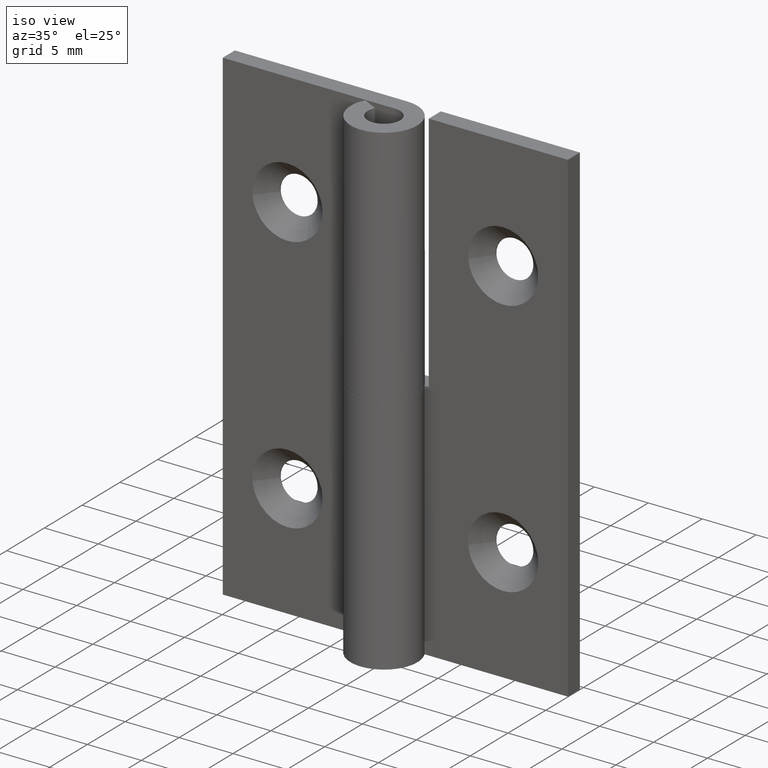
[diagram: clean part render]
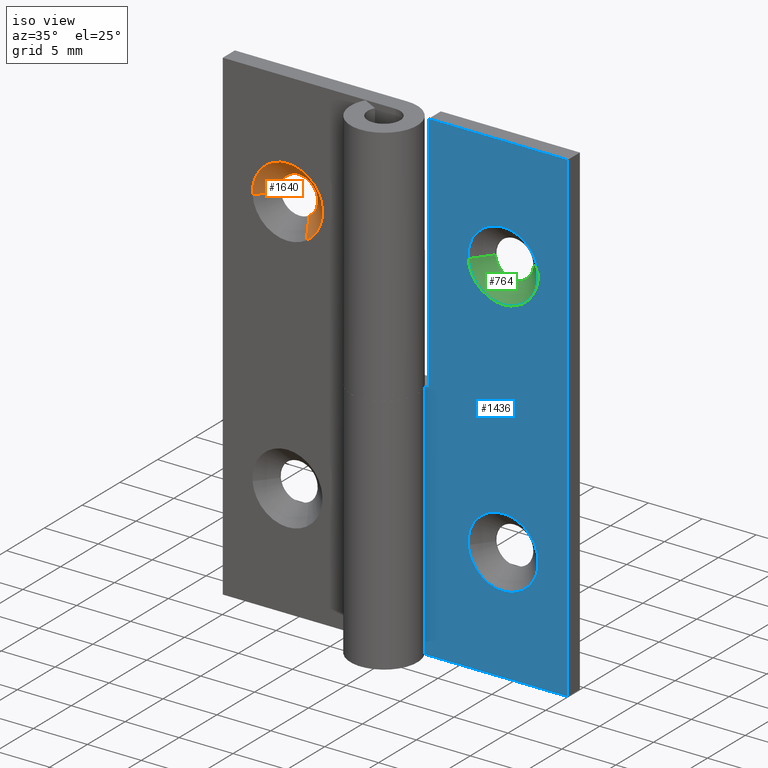
[diagram: same view with three faces highlighted in distinct colors, each labeled with its STEP entity id]
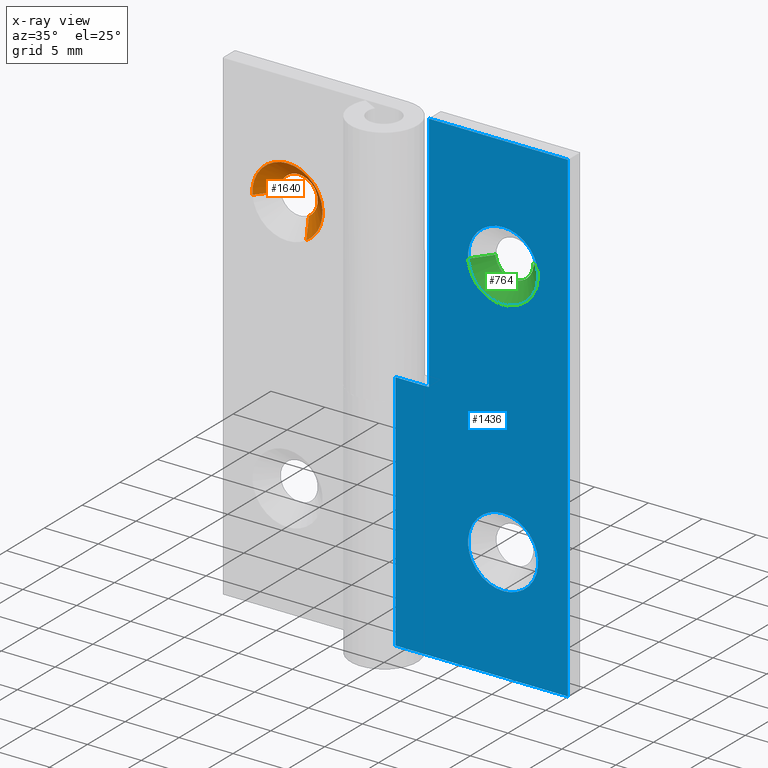
[diagram: x-ray of the same camera — body ghosted, the three highlighted faces saturated]
A machine part, iso view with three faces highlighted in distinct colors.
The next image is the same camera in x-ray (body ghosted, the three faces saturated) — at least one of them is partly hidden behind the body in this view.
Their STEP definitions:

[orange] entity #1640 — the highlighted face is a freeform B-spline surface patch.
#1504=CARTESIAN_POINT('',(-9.078930516223377,3.037499999999999,33.056293916319710));
#1505=CARTESIAN_POINT('',(-8.212106467955564,3.037500000000000,33.609318654310641));
#1506=CARTESIAN_POINT('',(-8.292779065982019,3.037500000000001,34.634361201433933));
#1507=CARTESIAN_POINT('',(-8.427140267415954,3.037500000000001,36.341582135451908));
#1508=CARTESIAN_POINT('',(-10.134361201433940,3.037500000000001,36.207220934017982));
#1509=CARTESIAN_POINT('',(-11.841582135451914,3.037500000000001,36.072859732584043));
#1510=CARTESIAN_POINT('',(-11.707220934017981,3.037500000000001,34.365638798566067));
#1511=CARTESIAN_POINT('',(-8.231311281426748,1.461562499999999,31.727715489312466));
#1512=CARTESIAN_POINT('',(-6.566787657353352,1.461562499999999,32.789664269947252));
#1513=CARTESIAN_POINT('',(-6.721699655351968,1.461562500000000,34.758007832607539));
#1514=CARTESIAN_POINT('',(-6.979707487959504,1.461562499999999,38.036308177255577));
#1515=CARTESIAN_POINT('',(-10.258007832607539,1.461562500000000,37.778300344648031));
#1516=CARTESIAN_POINT('',(-13.536308177255568,1.461562499999999,37.520292512040498));
#1517=CARTESIAN_POINT('',(-13.278300344648031,1.461562500000000,34.241992167392461));
#1525=(BOUNDED_SURFACE()B_SPLINE_SURFACE(2,1,((#1504,#1511),(#1505,#1512),(#1506,#1513),(#1507,#1514),(#1508,#1515),(#1509,#1516),(#1510,#1517)),.UNSPECIFIED.,.F.,.F.,.U.)B_SPLINE_SURFACE_WITH_KNOTS((3,2,2,3),(2,2),(0.0,3.704953919324270,9.153415565389375,14.601877211454481),(0.0,2.228712185952351),.UNSPECIFIED.)GEOMETRIC_REPRESENTATION_ITEM()RATIONAL_B_SPLINE_SURFACE(((0.872532871172386,0.872532871172386),(0.800832611206852,0.800832611206852),(1.0,1.0),(0.707106781186548,0.707106781186548),(1.0,1.0),(0.707106781186548,0.707106781186548),(1.0,1.0)))REPRESENTATION_ITEM('')SURFACE());
#1526=CARTESIAN_POINT('',(-8.262233269194535,3.000000000000070,34.706559408658691));
#1527=VERTEX_POINT('',#1526);
#1528=CARTESIAN_POINT('',(-9.058761111460914,2.999999999999524,33.024679914491983));
#1529=VERTEX_POINT('',#1528);
#1530=CARTESIAN_POINT('',(-8.262233269194535,3.000000000000071,34.706559408658698));
#1531=CARTESIAN_POINT('',(-8.250000000000000,3.0,34.603641702093249));
#1532=CARTESIAN_POINT('',(-8.250000000000000,3.0,34.500000000000000));
#1533=CARTESIAN_POINT('',(-8.250000000000000,3.000000000000000,33.540661101986558));
#1534=CARTESIAN_POINT('',(-9.058761111460914,2.999999999999524,33.024679914491983));
#1542=(BOUNDED_CURVE()B_SPLINE_CURVE(2,(#1530,#1531,#1532,#1533,#1534),.UNSPECIFIED.,.F.,.U.)B_SPLINE_CURVE_WITH_KNOTS((3,2,3),(0.229562571155973,0.250000000000000,0.407950112625919),.UNSPECIFIED.)CURVE()GEOMETRIC_REPRESENTATION_ITEM()RATIONAL_B_SPLINE_CURVE((0.956026945567016,0.976056062726409,1.0,0.814949932404189,0.863729296953916))REPRESENTATION_ITEM(''));
#1543=EDGE_CURVE('',#1527,#1529,#1542,.T.);
#1544=ORIENTED_EDGE('',*,*,#1543,.T.);
#1545=CARTESIAN_POINT('',(-8.251984921224405,1.499999999995385,31.760119841233362));
#1546=VERTEX_POINT('',#1545);
#1547=CARTESIAN_POINT('',(-9.058761111460914,2.999999999999524,33.024679914491983));
#1548=CARTESIAN_POINT('',(-8.251984921224405,1.499999999995385,31.760119841233362));
#1549=QUASI_UNIFORM_CURVE('',1,(#1547,#1548),.UNSPECIFIED.,.F.,.U.);
#1550=EDGE_CURVE('',#1529,#1546,#1549,.T.);
#1551=ORIENTED_EDGE('',*,*,#1550,.T.);
#1552=CARTESIAN_POINT('',(-10.0,1.500000000000000,37.750000000000007));
#1553=VERTEX_POINT('',#1552);
#1554=CARTESIAN_POINT('',(-10.0,1.500000000000000,37.750000000000007));
#1555=CARTESIAN_POINT('',(-6.750000000000001,1.500000000000000,37.750000000000007));
#1556=CARTESIAN_POINT('',(-6.750000000000001,1.500000000000000,34.500000000000000));
#1557=CARTESIAN_POINT('',(-6.750000000000001,1.500000000000000,32.718370618064732));
#1558=CARTESIAN_POINT('',(-8.251984921224405,1.499999999995385,31.760119841233358));
#1566=(BOUNDED_CURVE()B_SPLINE_CURVE(2,(#1554,#1555,#1556,#1557,#1558),.UNSPECIFIED.,.F.,.U.)B_SPLINE_CURVE_WITH_KNOTS((3,2,3),(0.0,0.250000000000000,0.407950112619439),.UNSPECIFIED.)CURVE()GEOMETRIC_REPRESENTATION_ITEM()RATIONAL_B_SPLINE_CURVE((1.0,0.707106781186547,1.0,0.814949932411780,0.863729296949914))REPRESENTATION_ITEM(''));
#1567=EDGE_CURVE('',#1553,#1546,#1566,.T.);
#1568=ORIENTED_EDGE('',*,*,#1567,.F.);
#1569=CARTESIAN_POINT('',(-13.239981334648011,1.499999999961411,34.245007938587662));
#1570=VERTEX_POINT('',#1569);
#1571=CARTESIAN_POINT('',(-13.239981334648009,1.499999999961411,34.245007938587655));
#1572=CARTESIAN_POINT('',(-13.249999999999998,1.500000000000000,34.372307151929895));
#1573=CARTESIAN_POINT('',(-13.250000000000000,1.500000000000000,34.500000000000000));
#1574=CARTESIAN_POINT('',(-13.250000000000004,1.500000000000000,37.750000000000007));
#1575=CARTESIAN_POINT('',(-10.0,1.500000000000000,37.750000000000007));
#1583=(BOUNDED_CURVE()B_SPLINE_CURVE(2,(#1571,#1572,#1573,#1574,#1575),.UNSPECIFIED.,.F.,.U.)B_SPLINE_CURVE_WITH_KNOTS((3,2,3),(0.736331300601676,0.750000000000000,1.0),.UNSPECIFIED.)CURVE()GEOMETRIC_REPRESENTATION_ITEM()RATIONAL_B_SPLINE_CURVE((0.969723356106931,0.983986122544925,1.0,0.707106781186547,1.0))REPRESENTATION_ITEM(''));
#1584=EDGE_CURVE('',#1570,#1553,#1583,.T.);
#1585=ORIENTED_EDGE('',*,*,#1584,.F.);
#1586=CARTESIAN_POINT('',(-11.744605334037789,2.999999999988071,34.362696582385382));
#1587=VERTEX_POINT('',#1586);
#1588=CARTESIAN_POINT('',(-11.744605334037789,2.999999999988071,34.362696582385382));
#1589=CARTESIAN_POINT('',(-13.239981334648011,1.499999999961411,34.245007938587662));
#1590=QUASI_UNIFORM_CURVE('',1,(#1588,#1589),.UNSPECIFIED.,.F.,.U.);
#1591=EDGE_CURVE('',#1587,#1570,#1590,.T.);
#1592=ORIENTED_EDGE('',*,*,#1591,.F.);
#1593=CARTESIAN_POINT('',(-11.746735897236000,3.0,34.393165055776912));
#1594=VERTEX_POINT('',#1593);
#1595=CARTESIAN_POINT('',(-11.744605334037786,2.999999999988071,34.362696582385382));
#1596=CARTESIAN_POINT('',(-11.745803562796494,3.000000000000000,34.377921522446300));
#1597=CARTESIAN_POINT('',(-11.746735897235995,3.000000000000000,34.393165055776912));
#1605=(BOUNDED_CURVE()B_SPLINE_CURVE(2,(#1595,#1596,#1597),.UNSPECIFIED.,.F.,.U.)B_SPLINE_CURVE_WITH_KNOTS((3,3),(0.736331300615089,0.739332962234640),.UNSPECIFIED.)CURVE()GEOMETRIC_REPRESENTATION_ITEM()RATIONAL_B_SPLINE_CURVE((0.969723356134923,0.972855475538760,0.976072041657495))REPRESENTATION_ITEM(''));
#1606=EDGE_CURVE('',#1587,#1594,#1605,.T.);
#1607=ORIENTED_EDGE('',*,*,#1606,.T.);
#1608=CARTESIAN_POINT('',(-10.0,3.0,36.250000000000007));
#1609=VERTEX_POINT('',#1608);
#1610=CARTESIAN_POINT('',(-11.746735897236002,3.0,34.393165055776905));
#1611=CARTESIAN_POINT('',(-11.749999999999998,3.000000000000000,34.446532664190279));
#1612=CARTESIAN_POINT('',(-11.750000000000000,3.0,34.500000000000000));
#1613=CARTESIAN_POINT('',(-11.750000000000004,3.000000000000000,36.250000000000007));
#1614=CARTESIAN_POINT('',(-10.0,3.0,36.250000000000007));
#1622=(BOUNDED_CURVE()B_SPLINE_CURVE(2,(#1610,#1611,#1612,#1613,#1614),.UNSPECIFIED.,.F.,.U.)B_SPLINE_CURVE_WITH_KNOTS((3,2,3),(0.739332962234640,0.750000000000000,1.0),.UNSPECIFIED.)CURVE()GEOMETRIC_REPRESENTATION_ITEM()RATIONAL_B_SPLINE_CURVE((0.976072041657497,0.987502787894797,1.0,0.707106781186547,1.0))REPRESENTATION_ITEM(''));
#1623=EDGE_CURVE('',#1594,#1609,#1622,.T.);
#1624=ORIENTED_EDGE('',*,*,#1623,.T.);
#1625=CARTESIAN_POINT('',(-10.0,3.0,36.250000000000007));
#1626=CARTESIAN_POINT('',(-8.445693675275400,3.000000000000001,36.250000000000014));
#1627=CARTESIAN_POINT('',(-8.262233269194535,3.000000000000071,34.706559408658698));
#1635=(BOUNDED_CURVE()B_SPLINE_CURVE(2,(#1625,#1626,#1627),.UNSPECIFIED.,.F.,.U.)B_SPLINE_CURVE_WITH_KNOTS((3,3),(0.0,0.229562571155973),.UNSPECIFIED.)CURVE()GEOMETRIC_REPRESENTATION_ITEM()RATIONAL_B_SPLINE_CURVE((1.0,0.731050718460139,0.956026945567016))REPRESENTATION_ITEM(''));
#1636=EDGE_CURVE('',#1609,#1527,#1635,.T.);
#1637=ORIENTED_EDGE('',*,*,#1636,.T.);
#1638=EDGE_LOOP('',(#1544,#1551,#1568,#1585,#1592,#1607,#1624,#1637));
#1639=FACE_OUTER_BOUND('',#1638,.T.);
#1640=ADVANCED_FACE('',(#1639),#1525,.F.);

[blue] entity #1436 — the highlighted face is a freeform B-spline surface patch.
#657=CARTESIAN_POINT('',(13.239981334648011,1.499999999961411,34.754992061412338));
#658=VERTEX_POINT('',#657);
#664=CARTESIAN_POINT('',(10.0,1.500000000000000,37.750000000000007));
#665=VERTEX_POINT('',#664);
#666=CARTESIAN_POINT('',(10.0,1.500000000000000,37.750000000000007));
#667=CARTESIAN_POINT('',(13.004269097342620,1.500000000000000,37.750000000000007));
#668=CARTESIAN_POINT('',(13.239981334648007,1.499999999961411,34.754992061412338));
#676=(BOUNDED_CURVE()B_SPLINE_CURVE(2,(#666,#667,#668),.UNSPECIFIED.,.F.,.U.)B_SPLINE_CURVE_WITH_KNOTS((3,3),(0.0,0.236331300601676),.UNSPECIFIED.)CURVE()GEOMETRIC_REPRESENTATION_ITEM()RATIONAL_B_SPLINE_CURVE((1.0,0.723120658641622,0.969723356106932))REPRESENTATION_ITEM(''));
#677=EDGE_CURVE('',#665,#658,#676,.T.);
#679=CARTESIAN_POINT('',(6.760018665351989,1.499999999961412,34.245007938587662));
#680=VERTEX_POINT('',#679);
#681=CARTESIAN_POINT('',(6.760018665351989,1.499999999961412,34.245007938587655));
#682=CARTESIAN_POINT('',(6.750000000000001,1.500000000000000,34.372307151929895));
#683=CARTESIAN_POINT('',(6.750000000000001,1.500000000000000,34.500000000000000));
#684=CARTESIAN_POINT('',(6.750000000000001,1.500000000000000,37.750000000000007));
#685=CARTESIAN_POINT('',(10.0,1.500000000000000,37.750000000000007));
#693=(BOUNDED_CURVE()B_SPLINE_CURVE(2,(#681,#682,#683,#684,#685),.UNSPECIFIED.,.F.,.U.)B_SPLINE_CURVE_WITH_KNOTS((3,2,3),(0.736331300601676,0.750000000000000,1.0),.UNSPECIFIED.)CURVE()GEOMETRIC_REPRESENTATION_ITEM()RATIONAL_B_SPLINE_CURVE((0.969723356106931,0.983986122544925,1.0,0.707106781186547,1.0))REPRESENTATION_ITEM(''));
#694=EDGE_CURVE('',#680,#665,#693,.T.);
#731=CARTESIAN_POINT('',(10.0,1.500000000000000,31.250000000000000));
#732=VERTEX_POINT('',#731);
#733=CARTESIAN_POINT('',(10.0,1.500000000000000,31.250000000000000));
#734=CARTESIAN_POINT('',(6.995730902657400,1.500000000000000,31.250000000000004));
#735=CARTESIAN_POINT('',(6.760018665351989,1.499999999961412,34.245007938587662));
#743=(BOUNDED_CURVE()B_SPLINE_CURVE(2,(#733,#734,#735),.UNSPECIFIED.,.F.,.U.)B_SPLINE_CURVE_WITH_KNOTS((3,3),(0.500000000000000,0.736331300601675),.UNSPECIFIED.)CURVE()GEOMETRIC_REPRESENTATION_ITEM()RATIONAL_B_SPLINE_CURVE((1.0,0.723120658641623,0.969723356106930))REPRESENTATION_ITEM(''));
#744=EDGE_CURVE('',#732,#680,#743,.T.);
#746=CARTESIAN_POINT('',(13.239981334648009,1.499999999961411,34.754992061412338));
#747=CARTESIAN_POINT('',(13.250000000000004,1.500000000000000,34.627692848070105));
#748=CARTESIAN_POINT('',(13.250000000000000,1.500000000000000,34.500000000000000));
#749=CARTESIAN_POINT('',(13.250000000000004,1.500000000000000,31.250000000000004));
#750=CARTESIAN_POINT('',(10.0,1.500000000000000,31.250000000000000));
#758=(BOUNDED_CURVE()B_SPLINE_CURVE(2,(#746,#747,#748,#749,#750),.UNSPECIFIED.,.F.,.U.)B_SPLINE_CURVE_WITH_KNOTS((3,2,3),(0.236331300601676,0.250000000000000,0.500000000000000),.UNSPECIFIED.)CURVE()GEOMETRIC_REPRESENTATION_ITEM()RATIONAL_B_SPLINE_CURVE((0.969723356106932,0.983986122544926,1.0,0.707106781186547,1.0))REPRESENTATION_ITEM(''));
#759=EDGE_CURVE('',#658,#732,#758,.T.);
#985=CARTESIAN_POINT('',(13.239981334648011,1.499999999961411,10.754992061412340));
#986=VERTEX_POINT('',#985);
#992=CARTESIAN_POINT('',(10.0,1.500000000000000,13.750000000000000));
#993=VERTEX_POINT('',#992);
#994=CARTESIAN_POINT('',(10.0,1.500000000000000,13.750000000000000));
#995=CARTESIAN_POINT('',(13.004269097342611,1.500000000000000,13.749999999999998));
#996=CARTESIAN_POINT('',(13.239981334648007,1.499999999961411,10.754992061412336));
#1004=(BOUNDED_CURVE()B_SPLINE_CURVE(2,(#994,#995,#996),.UNSPECIFIED.,.F.,.U.)B_SPLINE_CURVE_WITH_KNOTS((3,3),(0.0,0.236331300601676),.UNSPECIFIED.)CURVE()GEOMETRIC_REPRESENTATION_ITEM()RATIONAL_B_SPLINE_CURVE((1.0,0.723120658641622,0.969723356106931))REPRESENTATION_ITEM(''));
#1005=EDGE_CURVE('',#993,#986,#1004,.T.);
#1007=CARTESIAN_POINT('',(6.760018665351989,1.499999999961412,10.245007938587660));
#1008=VERTEX_POINT('',#1007);
#1009=CARTESIAN_POINT('',(6.760018665351989,1.499999999961412,10.245007938587662));
#1010=CARTESIAN_POINT('',(6.750000000000001,1.500000000000000,10.372307151929897));
#1011=CARTESIAN_POINT('',(6.750000000000001,1.500000000000000,10.500000000000000));
#1012=CARTESIAN_POINT('',(6.750000000000001,1.500000000000000,13.750000000000000));
#1013=CARTESIAN_POINT('',(10.0,1.500000000000000,13.750000000000000));
#1021=(BOUNDED_CURVE()B_SPLINE_CURVE(2,(#1009,#1010,#1011,#1012,#1013),.UNSPECIFIED.,.F.,.U.)B_SPLINE_CURVE_WITH_KNOTS((3,2,3),(0.736331300601676,0.750000000000000,1.0),.UNSPECIFIED.)CURVE()GEOMETRIC_REPRESENTATION_ITEM()RATIONAL_B_SPLINE_CURVE((0.969723356106931,0.983986122544926,1.0,0.707106781186547,1.0))REPRESENTATION_ITEM(''));
#1022=EDGE_CURVE('',#1008,#993,#1021,.T.);
#1059=CARTESIAN_POINT('',(10.0,1.500000000000000,7.250000000000001));
#1060=VERTEX_POINT('',#1059);
#1061=CARTESIAN_POINT('',(10.0,1.500000000000000,7.250000000000001));
#1062=CARTESIAN_POINT('',(6.995730902657400,1.500000000000000,7.250000000000000));
#1063=CARTESIAN_POINT('',(6.760018665351989,1.499999999961412,10.245007938587662));
#1071=(BOUNDED_CURVE()B_SPLINE_CURVE(2,(#1061,#1062,#1063),.UNSPECIFIED.,.F.,.U.)B_SPLINE_CURVE_WITH_KNOTS((3,3),(0.500000000000000,0.736331300601675),.UNSPECIFIED.)CURVE()GEOMETRIC_REPRESENTATION_ITEM()RATIONAL_B_SPLINE_CURVE((1.0,0.723120658641623,0.969723356106930))REPRESENTATION_ITEM(''));
#1072=EDGE_CURVE('',#1060,#1008,#1071,.T.);
#1074=CARTESIAN_POINT('',(13.239981334648007,1.499999999961411,10.754992061412334));
#1075=CARTESIAN_POINT('',(13.249999999999996,1.500000000000000,10.627692848070106));
#1076=CARTESIAN_POINT('',(13.250000000000000,1.500000000000000,10.500000000000000));
#1077=CARTESIAN_POINT('',(13.250000000000004,1.500000000000000,7.250000000000000));
#1078=CARTESIAN_POINT('',(10.0,1.500000000000000,7.250000000000001));
#1086=(BOUNDED_CURVE()B_SPLINE_CURVE(2,(#1074,#1075,#1076,#1077,#1078),.UNSPECIFIED.,.F.,.U.)B_SPLINE_CURVE_WITH_KNOTS((3,2,3),(0.236331300601676,0.250000000000000,0.500000000000000),.UNSPECIFIED.)CURVE()GEOMETRIC_REPRESENTATION_ITEM()RATIONAL_B_SPLINE_CURVE((0.969723356106931,0.983986122544926,1.0,0.707106781186547,1.0))REPRESENTATION_ITEM(''));
#1087=EDGE_CURVE('',#986,#1060,#1086,.T.);
#1098=CARTESIAN_POINT('',(3.100000000000095,1.500000000000000,45.0));
#1099=VERTEX_POINT('',#1098);
#1114=CARTESIAN_POINT('',(3.100000000000095,1.499999999999946,22.500000000000000));
#1115=VERTEX_POINT('',#1114);
#1121=CARTESIAN_POINT('',(3.100000000000095,1.500000000000000,45.0));
#1122=CARTESIAN_POINT('',(3.100000000000095,1.499999999999946,22.500000000000000));
#1123=QUASI_UNIFORM_CURVE('',1,(#1121,#1122),.UNSPECIFIED.,.F.,.U.);
#1124=EDGE_CURVE('',#1099,#1115,#1123,.T.);
#1164=CARTESIAN_POINT('',(0.0,1.500000000000000,22.500000000000000));
#1165=VERTEX_POINT('',#1164);
#1185=CARTESIAN_POINT('',(3.100000000000095,1.499999999999946,22.500000000000000));
#1186=CARTESIAN_POINT('',(0.0,1.500000000000000,22.500000000000000));
#1187=QUASI_UNIFORM_CURVE('',1,(#1185,#1186),.UNSPECIFIED.,.F.,.U.);
#1188=EDGE_CURVE('',#1115,#1165,#1187,.T.);
#1212=CARTESIAN_POINT('',(16.000008000000101,1.500000000000000,45.0));
#1213=VERTEX_POINT('',#1212);
#1214=CARTESIAN_POINT('',(16.000008000000101,1.500000000000000,45.0));
#1215=CARTESIAN_POINT('',(3.100000000000095,1.500000000000000,45.0));
#1216=QUASI_UNIFORM_CURVE('',1,(#1214,#1215),.UNSPECIFIED.,.F.,.U.);
#1217=EDGE_CURVE('',#1213,#1099,#1216,.T.);
#1262=CARTESIAN_POINT('',(16.000008000000101,1.500000000000000,0.0));
#1263=VERTEX_POINT('',#1262);
#1269=CARTESIAN_POINT('',(0.0,1.500000000000000,0.0));
#1270=VERTEX_POINT('',#1269);
#1271=CARTESIAN_POINT('',(16.000008000000101,1.500000000000000,0.0));
#1272=CARTESIAN_POINT('',(0.0,1.500000000000000,0.0));
#1273=QUASI_UNIFORM_CURVE('',1,(#1271,#1272),.UNSPECIFIED.,.F.,.U.);
#1274=EDGE_CURVE('',#1263,#1270,#1273,.T.);
#1350=CARTESIAN_POINT('',(0.0,1.500000000000000,0.0));
#1351=CARTESIAN_POINT('',(0.0,1.500000000000000,22.500000000000000));
#1352=QUASI_UNIFORM_CURVE('',1,(#1350,#1351),.UNSPECIFIED.,.F.,.U.);
#1353=EDGE_CURVE('',#1270,#1165,#1352,.T.);
#1364=CARTESIAN_POINT('',(16.000008000000101,1.500000000000000,0.0));
#1365=CARTESIAN_POINT('',(16.000008000000101,1.500000000000000,45.0));
#1366=QUASI_UNIFORM_CURVE('',1,(#1364,#1365),.UNSPECIFIED.,.F.,.U.);
#1367=EDGE_CURVE('',#1263,#1213,#1366,.T.);
#1411=CARTESIAN_POINT('',(-0.799200311425617,1.500000000000000,-2.247749912781269));
#1412=CARTESIAN_POINT('',(-0.799200311425617,1.500000000000000,47.247751119775323));
#1413=CARTESIAN_POINT('',(16.799207596169630,1.500000000000000,-2.247749912781269));
#1414=CARTESIAN_POINT('',(16.799207596169630,1.500000000000000,47.247751119775323));
#1415=B_SPLINE_SURFACE_WITH_KNOTS('',1,1,((#1411,#1413),(#1412,#1414)),.UNSPECIFIED.,.F.,.F.,.U.,(2,2),(2,2),(0.0,49.495501032556589),(0.0,17.598407907595249),.UNSPECIFIED.);
#1416=ORIENTED_EDGE('',*,*,#1217,.T.);
#1417=ORIENTED_EDGE('',*,*,#1124,.T.);
#1418=ORIENTED_EDGE('',*,*,#1188,.T.);
#1419=ORIENTED_EDGE('',*,*,#1353,.F.);
#1420=ORIENTED_EDGE('',*,*,#1274,.F.);
#1421=ORIENTED_EDGE('',*,*,#1367,.T.);
#1422=EDGE_LOOP('',(#1416,#1417,#1418,#1419,#1420,#1421));
#1423=FACE_OUTER_BOUND('',#1422,.T.);
#1424=ORIENTED_EDGE('',*,*,#1072,.T.);
#1425=ORIENTED_EDGE('',*,*,#1022,.T.);
#1426=ORIENTED_EDGE('',*,*,#1005,.T.);
#1427=ORIENTED_EDGE('',*,*,#1087,.T.);
#1428=EDGE_LOOP('',(#1424,#1425,#1426,#1427));
#1429=FACE_BOUND('',#1428,.T.);
#1430=ORIENTED_EDGE('',*,*,#744,.T.);
#1431=ORIENTED_EDGE('',*,*,#694,.T.);
#1432=ORIENTED_EDGE('',*,*,#677,.T.);
#1433=ORIENTED_EDGE('',*,*,#759,.T.);
#1434=EDGE_LOOP('',(#1430,#1431,#1432,#1433));
#1435=FACE_BOUND('',#1434,.T.);
#1436=ADVANCED_FACE('',(#1423,#1429,#1435),#1415,.F.);

[green] entity #764 — the highlighted face is a freeform B-spline surface patch.
#455=CARTESIAN_POINT('',(11.738571088511440,3.0,34.300323836695107));
#456=VERTEX_POINT('',#455);
#457=CARTESIAN_POINT('',(10.0,3.0,32.750000000000000));
#458=VERTEX_POINT('',#457);
#459=CARTESIAN_POINT('',(11.738571088511431,3.0,34.300323836695114));
#460=CARTESIAN_POINT('',(11.560515259991366,2.999999999999999,32.750000000000000));
#461=CARTESIAN_POINT('',(10.0,3.0,32.750000000000000));
#469=(BOUNDED_CURVE()B_SPLINE_CURVE(2,(#459,#460,#461),.UNSPECIFIED.,.F.,.U.)B_SPLINE_CURVE_WITH_KNOTS((3,3),(0.269767755878413,0.500000000000000),.UNSPECIFIED.)CURVE()GEOMETRIC_REPRESENTATION_ITEM()RATIONAL_B_SPLINE_CURVE((0.957343736457107,0.730266147778335,1.0))REPRESENTATION_ITEM(''));
#470=EDGE_CURVE('',#456,#458,#469,.T.);
#509=CARTESIAN_POINT('',(8.253264102761737,3.0,34.393165055813917));
#510=VERTEX_POINT('',#509);
#516=CARTESIAN_POINT('',(10.0,3.0,32.750000000000000));
#517=CARTESIAN_POINT('',(8.353764382915101,3.000000000000000,32.750000000000000));
#518=CARTESIAN_POINT('',(8.253264102761738,3.000000000000000,34.393165055813931));
#526=(BOUNDED_CURVE()B_SPLINE_CURVE(2,(#516,#517,#518),.UNSPECIFIED.,.F.,.U.)B_SPLINE_CURVE_WITH_KNOTS((3,3),(0.500000000000000,0.739332962241961),.UNSPECIFIED.)CURVE()GEOMETRIC_REPRESENTATION_ITEM()RATIONAL_B_SPLINE_CURVE((1.0,0.719603993283174,0.976072041673187))REPRESENTATION_ITEM(''));
#527=EDGE_CURVE('',#458,#510,#526,.T.);
#554=CARTESIAN_POINT('',(11.744603873788741,3.000001553485615,34.637302171733829));
#555=VERTEX_POINT('',#554);
#556=CARTESIAN_POINT('',(11.744603873788733,3.000001553485616,34.637302171733822));
#557=CARTESIAN_POINT('',(11.749998765780488,3.000001238035833,34.568757025570179));
#558=CARTESIAN_POINT('',(11.749999081675750,3.000000921164062,34.499999927730649));
#559=CARTESIAN_POINT('',(11.749999541870993,3.000000459546256,34.399834802647618));
#560=CARTESIAN_POINT('',(11.738571088511437,3.000000000000000,34.300323836695114));
#568=(BOUNDED_CURVE()B_SPLINE_CURVE(2,(#556,#557,#558,#559,#560),.UNSPECIFIED.,.F.,.U.)B_SPLINE_CURVE_WITH_KNOTS((3,2,3),(0.236331411067484,0.250000000000000,0.269767755878413),.UNSPECIFIED.)CURVE()GEOMETRIC_REPRESENTATION_ITEM()RATIONAL_B_SPLINE_CURVE((0.969723586640760,0.983986251963670,1.0,0.976840633408213,0.957343736457106))REPRESENTATION_ITEM(''));
#569=EDGE_CURVE('',#555,#456,#568,.T.);
#657=CARTESIAN_POINT('',(13.239981334648011,1.499999999961411,34.754992061412338));
#658=VERTEX_POINT('',#657);
#659=CARTESIAN_POINT('',(11.744603873788741,3.000001553485615,34.637302171733829));
#660=CARTESIAN_POINT('',(13.239981334648011,1.499999999961411,34.754992061412338));
#661=QUASI_UNIFORM_CURVE('',1,(#659,#660),.UNSPECIFIED.,.F.,.U.);
#662=EDGE_CURVE('',#555,#658,#661,.T.);
#679=CARTESIAN_POINT('',(6.760018665351989,1.499999999961412,34.245007938587662));
#680=VERTEX_POINT('',#679);
#696=CARTESIAN_POINT('',(8.253264102761737,3.0,34.393165055813917));
#697=CARTESIAN_POINT('',(6.760018665351989,1.499999999961412,34.245007938587662));
#698=QUASI_UNIFORM_CURVE('',1,(#696,#697),.UNSPECIFIED.,.F.,.U.);
#699=EDGE_CURVE('',#510,#680,#698,.T.);
#705=CARTESIAN_POINT('',(8.288577224274665,3.037500000000001,34.419028259568755));
#706=CARTESIAN_POINT('',(8.290664449189606,3.037500000000001,34.392507552469034));
#707=CARTESIAN_POINT('',(8.427140267415954,3.037500000000001,32.658417864548085));
#708=CARTESIAN_POINT('',(10.134361201433940,3.037500000000001,32.792779065982018));
#709=CARTESIAN_POINT('',(11.841582135451914,3.037500000000001,32.927140267415950));
#710=CARTESIAN_POINT('',(11.706267802986726,3.037499999999999,34.646471879457394));
#711=CARTESIAN_POINT('',(11.705320256804194,3.037500000000001,34.658511595249664));
#712=CARTESIAN_POINT('',(6.713631045810634,1.461562500000001,34.344513572160928));
#713=CARTESIAN_POINT('',(6.717639050879968,1.461562500000000,34.293587039166347));
#714=CARTESIAN_POINT('',(6.979707487959504,1.461562499999999,30.963691822744433));
#715=CARTESIAN_POINT('',(10.258007832607539,1.461562500000000,31.221699655351969));
#716=CARTESIAN_POINT('',(13.536308177255568,1.461562499999999,31.479707487959512));
#717=CARTESIAN_POINT('',(13.276470089567399,1.461562499999999,34.781263428381443));
#718=CARTESIAN_POINT('',(13.274650558823097,1.461562500000000,34.804382758542381));
#726=(BOUNDED_SURFACE()B_SPLINE_SURFACE(2,1,((#705,#712),(#706,#713),(#707,#714),(#708,#715),(#709,#716),(#710,#717),(#711,#718)),.UNSPECIFIED.,.F.,.F.,.U.)B_SPLINE_SURFACE_WITH_KNOTS((3,1,2,1,3),(2,2),(0.0,0.122063870173299,5.570525516238391,11.018987162303480,11.073807993088620),(0.0,2.229257030403671),.UNSPECIFIED.)GEOMETRIC_REPRESENTATION_ITEM()RATIONAL_B_SPLINE_SURFACE(((1.013123586861148,1.013123586861148),(1.006561793430574,1.006561793430574),(0.707106781186548,0.707106781186548),(1.0,1.0),(0.707106781186548,0.707106781186548),(1.002947006077997,1.002947006077997),(1.005894012155993,1.005894012155993)))REPRESENTATION_ITEM('')SURFACE());
#727=ORIENTED_EDGE('',*,*,#569,.T.);
#728=ORIENTED_EDGE('',*,*,#470,.T.);
#729=ORIENTED_EDGE('',*,*,#527,.T.);
#730=ORIENTED_EDGE('',*,*,#699,.T.);
#731=CARTESIAN_POINT('',(10.0,1.500000000000000,31.250000000000000));
#732=VERTEX_POINT('',#731);
#733=CARTESIAN_POINT('',(10.0,1.500000000000000,31.250000000000000));
#734=CARTESIAN_POINT('',(6.995730902657400,1.500000000000000,31.250000000000004));
#735=CARTESIAN_POINT('',(6.760018665351989,1.499999999961412,34.245007938587662));
#743=(BOUNDED_CURVE()B_SPLINE_CURVE(2,(#733,#734,#735),.UNSPECIFIED.,.F.,.U.)B_SPLINE_CURVE_WITH_KNOTS((3,3),(0.500000000000000,0.736331300601675),.UNSPECIFIED.)CURVE()GEOMETRIC_REPRESENTATION_ITEM()RATIONAL_B_SPLINE_CURVE((1.0,0.723120658641623,0.969723356106930))REPRESENTATION_ITEM(''));
#744=EDGE_CURVE('',#732,#680,#743,.T.);
#745=ORIENTED_EDGE('',*,*,#744,.F.);
#746=CARTESIAN_POINT('',(13.239981334648009,1.499999999961411,34.754992061412338));
#747=CARTESIAN_POINT('',(13.250000000000004,1.500000000000000,34.627692848070105));
#748=CARTESIAN_POINT('',(13.250000000000000,1.500000000000000,34.500000000000000));
#749=CARTESIAN_POINT('',(13.250000000000004,1.500000000000000,31.250000000000004));
#750=CARTESIAN_POINT('',(10.0,1.500000000000000,31.250000000000000));
#758=(BOUNDED_CURVE()B_SPLINE_CURVE(2,(#746,#747,#748,#749,#750),.UNSPECIFIED.,.F.,.U.)B_SPLINE_CURVE_WITH_KNOTS((3,2,3),(0.236331300601676,0.250000000000000,0.500000000000000),.UNSPECIFIED.)CURVE()GEOMETRIC_REPRESENTATION_ITEM()RATIONAL_B_SPLINE_CURVE((0.969723356106932,0.983986122544926,1.0,0.707106781186547,1.0))REPRESENTATION_ITEM(''));
#759=EDGE_CURVE('',#658,#732,#758,.T.);
#760=ORIENTED_EDGE('',*,*,#759,.F.);
#761=ORIENTED_EDGE('',*,*,#662,.F.);
#762=EDGE_LOOP('',(#727,#728,#729,#730,#745,#760,#761));
#763=FACE_OUTER_BOUND('',#762,.T.);
#764=ADVANCED_FACE('',(#763),#726,.F.);